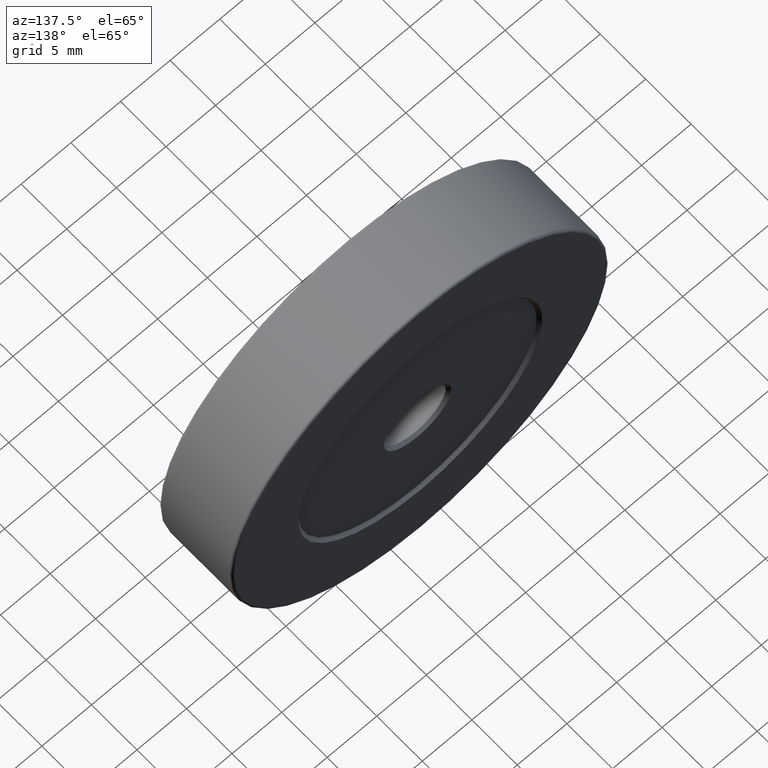
[diagram: clean part render]
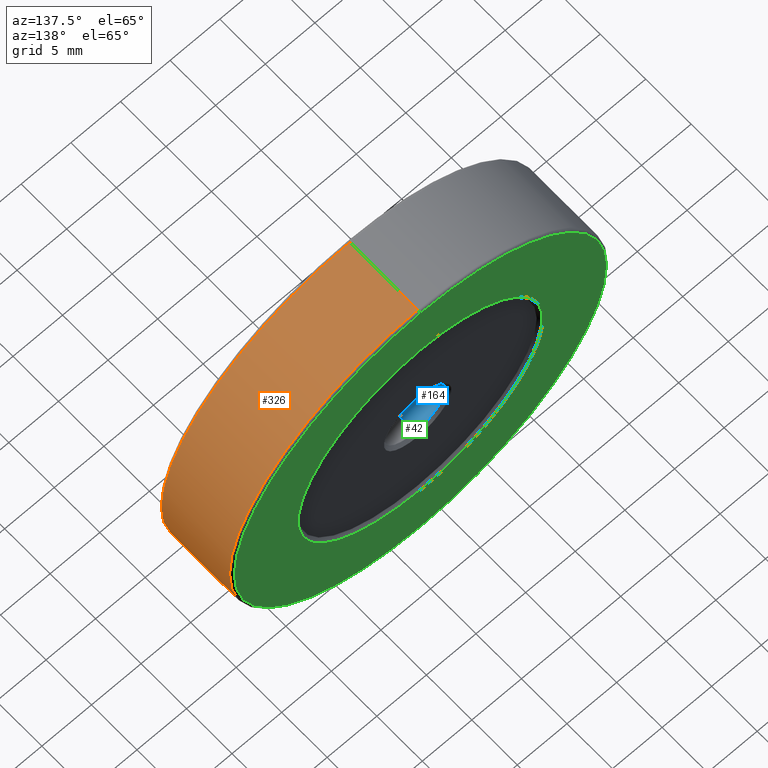
[diagram: same view with three faces highlighted in distinct colors, each labeled with its STEP entity id]
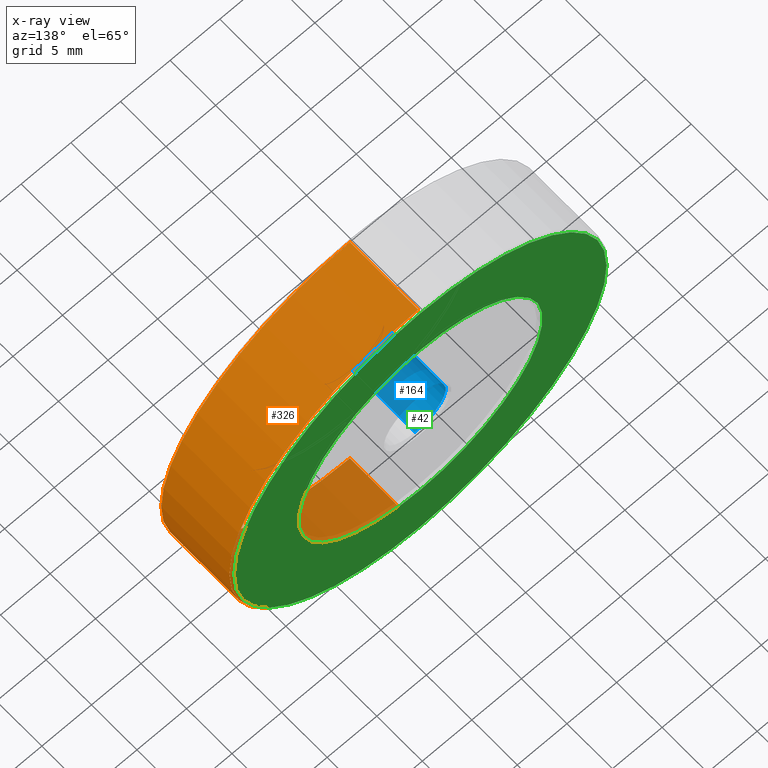
[diagram: x-ray of the same camera — body ghosted, the three highlighted faces saturated]
A machine part, auxiliary view with three faces highlighted in distinct colors.
The next image is the same camera in x-ray (body ghosted, the three faces saturated) — at least one of them is partly hidden behind the body in this view.
Their STEP definitions:

[orange] entity #326 — the highlighted cylindrical surface (partial cylindrical patch) has radius 19 mm, axis along (-0, -1, -0).
#7 = CARTESIAN_POINT ( 'NONE',  ( -7.546808913101048510, 0.8564048726972719461, 56.99999999999999289 ) ) ;
#19 = FACE_OUTER_BOUND ( 'NONE', #260, .T. ) ;
#40 = LINE ( 'NONE', #557, #454 ) ;
#43 = VERTEX_POINT ( 'NONE', #521 ) ;
#61 = DIRECTION ( 'NONE',  ( 0.000000000000000000, 0.000000000000000000, -1.000000000000000000 ) ) ;
#64 = AXIS2_PLACEMENT_3D ( 'NONE', #245, #379, #476 ) ;
#68 = VERTEX_POINT ( 'NONE', #408 ) ;
#96 = ORIENTED_EDGE ( 'NONE', *, *, #517, .F. ) ;
#118 = DIRECTION ( 'NONE',  ( -0.000000000000000000, -1.000000000000000000, -0.000000000000000000 ) ) ;
#119 = CIRCLE ( 'NONE', #372, 18.99999999999999645 ) ;
#120 = ORIENTED_EDGE ( 'NONE', *, *, #566, .T. ) ;
#149 = CYLINDRICAL_SURFACE ( 'NONE', #337, 19.00000000000000000 ) ;
#181 = VERTEX_POINT ( 'NONE', #7 ) ;
#205 = ORIENTED_EDGE ( 'NONE', *, *, #393, .T. ) ;
#222 = DIRECTION ( 'NONE',  ( -0.000000000000000000, -1.000000000000000000, -0.000000000000000000 ) ) ;
#242 = DIRECTION ( 'NONE',  ( 0.000000000000000000, 0.000000000000000000, 1.000000000000000000 ) ) ;
#244 = CARTESIAN_POINT ( 'NONE',  ( -7.546808913101048510, -6.643595127302727832, 38.00000000000000000 ) ) ;
#245 = CARTESIAN_POINT ( 'NONE',  ( -7.546808913101048510, 0.8564048726972719461, 38.00000000000000000 ) ) ;
#248 = DIRECTION ( 'NONE',  ( 0.000000000000000000, 1.000000000000000000, 0.000000000000000000 ) ) ;
#254 = LINE ( 'NONE', #443, #577 ) ;
#260 = EDGE_LOOP ( 'NONE', ( #205, #120, #442, #96 ) ) ;
#326 = ADVANCED_FACE ( 'NONE', ( #19 ), #149, .T. ) ;
#337 = AXIS2_PLACEMENT_3D ( 'NONE', #478, #339, #61 ) ;
#339 = DIRECTION ( 'NONE',  ( -0.000000000000000000, -1.000000000000000000, -0.000000000000000000 ) ) ;
#351 = CARTESIAN_POINT ( 'NONE',  ( -7.546808913101045846, -6.643595127302727832, 56.99999999999999289 ) ) ;
#372 = AXIS2_PLACEMENT_3D ( 'NONE', #244, #248, #242 ) ;
#379 = DIRECTION ( 'NONE',  ( -0.000000000000000000, -1.000000000000000000, -0.000000000000000000 ) ) ;
#393 = EDGE_CURVE ( 'NONE', #43, #181, #424, .T. ) ;
#406 = EDGE_CURVE ( 'NONE', #547, #68, #119, .T. ) ;
#408 = CARTESIAN_POINT ( 'NONE',  ( -7.546808913101048510, -6.643595127302727832, 19.00000000000000000 ) ) ;
#424 = CIRCLE ( 'NONE', #64, 18.99999999999999645 ) ;
#442 = ORIENTED_EDGE ( 'NONE', *, *, #406, .T. ) ;
#443 = CARTESIAN_POINT ( 'NONE',  ( -7.546808913101048510, 1.106404872697272168, 19.00000000000000000 ) ) ;
#454 = VECTOR ( 'NONE', #222, 1000.000000000000000 ) ;
#476 = DIRECTION ( 'NONE',  ( 0.000000000000000000, 0.000000000000000000, 1.000000000000000000 ) ) ;
#478 = CARTESIAN_POINT ( 'NONE',  ( -7.546808913101048510, 1.106404872697272168, 38.00000000000000000 ) ) ;
#517 = EDGE_CURVE ( 'NONE', #43, #68, #254, .T. ) ;
#521 = CARTESIAN_POINT ( 'NONE',  ( -7.546808913101044958, 0.8564048726972719461, 19.00000000000000000 ) ) ;
#547 = VERTEX_POINT ( 'NONE', #351 ) ;
#557 = CARTESIAN_POINT ( 'NONE',  ( -7.546808913101045846, 1.106404872697272168, 56.99999999999999289 ) ) ;
#566 = EDGE_CURVE ( 'NONE', #181, #547, #40, .T. ) ;
#577 = VECTOR ( 'NONE', #118, 1000.000000000000000 ) ;

[blue] entity #164 — the highlighted cylindrical surface (partial cylindrical patch) has radius 3.1 mm, axis along (-0, 1, -0).
#18 = ORIENTED_EDGE ( 'NONE', *, *, #304, .T. ) ;
#23 = ORIENTED_EDGE ( 'NONE', *, *, #63, .T. ) ;
#38 = ORIENTED_EDGE ( 'NONE', *, *, #108, .T. ) ;
#63 = EDGE_CURVE ( 'NONE', #511, #595, #180, .T. ) ;
#89 = CARTESIAN_POINT ( 'NONE',  ( -7.546808913101048510, -6.893595127302727832, 34.89999999999999858 ) ) ;
#93 = DIRECTION ( 'NONE',  ( 0.000000000000000000, 0.000000000000000000, 1.000000000000000000 ) ) ;
#108 = EDGE_CURVE ( 'NONE', #122, #511, #186, .T. ) ;
#109 = CARTESIAN_POINT ( 'NONE',  ( -7.546808913101048510, -6.293595127302728187, 41.09999999999999432 ) ) ;
#122 = VERTEX_POINT ( 'NONE', #561 ) ;
#130 = DIRECTION ( 'NONE',  ( -0.000000000000000000, 1.000000000000000000, -0.000000000000000000 ) ) ;
#148 = AXIS2_PLACEMENT_3D ( 'NONE', #194, #573, #344 ) ;
#162 = EDGE_LOOP ( 'NONE', ( #18, #38, #23, #514 ) ) ;
#164 = ADVANCED_FACE ( 'NONE', ( #189 ), #513, .F. ) ;
#180 = CIRCLE ( 'NONE', #496, 3.099999999999998757 ) ;
#186 = LINE ( 'NONE', #89, #537 ) ;
#189 = FACE_OUTER_BOUND ( 'NONE', #162, .T. ) ;
#194 = CARTESIAN_POINT ( 'NONE',  ( -7.546808913101048510, -6.293595127302728187, 38.00000000000000000 ) ) ;
#270 = CARTESIAN_POINT ( 'NONE',  ( -7.546808913101048510, -6.893595127302727832, 38.00000000000000000 ) ) ;
#287 = DIRECTION ( 'NONE',  ( 0.000000000000000000, 1.000000000000000000, 0.000000000000000000 ) ) ;
#304 = EDGE_CURVE ( 'NONE', #390, #122, #309, .T. ) ;
#309 = CIRCLE ( 'NONE', #148, 3.099999999999998757 ) ;
#329 = DIRECTION ( 'NONE',  ( -0.000000000000000000, 1.000000000000000000, -0.000000000000000000 ) ) ;
#344 = DIRECTION ( 'NONE',  ( 0.000000000000000000, 0.000000000000000000, -1.000000000000000000 ) ) ;
#377 = CARTESIAN_POINT ( 'NONE',  ( -7.546808913101048510, 0.5064048726972784076, 38.00000000000000000 ) ) ;
#390 = VERTEX_POINT ( 'NONE', #109 ) ;
#401 = VECTOR ( 'NONE', #560, 1000.000000000000000 ) ;
#410 = CARTESIAN_POINT ( 'NONE',  ( -7.546808913101048510, 0.5064048726972784076, 41.09999999999999432 ) ) ;
#458 = CARTESIAN_POINT ( 'NONE',  ( -7.546808913101048510, -6.893595127302727832, 41.09999999999999432 ) ) ;
#496 = AXIS2_PLACEMENT_3D ( 'NONE', #377, #287, #532 ) ;
#511 = VERTEX_POINT ( 'NONE', #597 ) ;
#513 = CYLINDRICAL_SURFACE ( 'NONE', #578, 3.099999999999998757 ) ;
#514 = ORIENTED_EDGE ( 'NONE', *, *, #551, .F. ) ;
#532 = DIRECTION ( 'NONE',  ( 0.000000000000000000, 0.000000000000000000, 1.000000000000000000 ) ) ;
#537 = VECTOR ( 'NONE', #130, 1000.000000000000000 ) ;
#551 = EDGE_CURVE ( 'NONE', #390, #595, #601, .T. ) ;
#560 = DIRECTION ( 'NONE',  ( -0.000000000000000000, 1.000000000000000000, -0.000000000000000000 ) ) ;
#561 = CARTESIAN_POINT ( 'NONE',  ( -7.546808913101048510, -6.293595127302728187, 34.89999999999999858 ) ) ;
#573 = DIRECTION ( 'NONE',  ( -0.000000000000000000, -1.000000000000000000, -0.000000000000000000 ) ) ;
#578 = AXIS2_PLACEMENT_3D ( 'NONE', #270, #329, #93 ) ;
#595 = VERTEX_POINT ( 'NONE', #410 ) ;
#597 = CARTESIAN_POINT ( 'NONE',  ( -7.546808913101048510, 0.5064048726972784076, 34.89999999999999858 ) ) ;
#601 = LINE ( 'NONE', #458, #401 ) ;

[green] entity #42 — the highlighted planar face has unit normal (0, 1, 0).
#10 = DIRECTION ( 'NONE',  ( 0.000000000000000000, 1.000000000000000000, 0.000000000000000000 ) ) ;
#21 = VERTEX_POINT ( 'NONE', #143 ) ;
#30 = CARTESIAN_POINT ( 'NONE',  ( -7.546808913101048510, 1.106404872697272168, 38.00000000000000000 ) ) ;
#32 = DIRECTION ( 'NONE',  ( -0.000000000000000000, -1.000000000000000000, -0.000000000000000000 ) ) ;
#42 = ADVANCED_FACE ( 'NONE', ( #283, #206 ), #472, .T. ) ;
#55 = CARTESIAN_POINT ( 'NONE',  ( -7.546808913101048510, 1.106404872697272168, 38.00000000000000000 ) ) ;
#56 = EDGE_CURVE ( 'NONE', #407, #77, #506, .T. ) ;
#57 = CIRCLE ( 'NONE', #524, 12.29999999999999893 ) ;
#77 = VERTEX_POINT ( 'NONE', #286 ) ;
#127 = AXIS2_PLACEMENT_3D ( 'NONE', #30, #251, #215 ) ;
#143 = CARTESIAN_POINT ( 'NONE',  ( -7.546808913101048510, 1.106404872697272168, 50.29999999999999716 ) ) ;
#152 = DIRECTION ( 'NONE',  ( 0.000000000000000000, 1.000000000000000000, 0.000000000000000000 ) ) ;
#160 = DIRECTION ( 'NONE',  ( -0.000000000000000000, -1.000000000000000000, -0.000000000000000000 ) ) ;
#192 = DIRECTION ( 'NONE',  ( 0.000000000000000000, -0.000000000000000000, 1.000000000000000000 ) ) ;
#201 = EDGE_LOOP ( 'NONE', ( #317, #409 ) ) ;
#206 = FACE_BOUND ( 'NONE', #201, .T. ) ;
#209 = CARTESIAN_POINT ( 'NONE',  ( -7.546808913101048510, 1.106404872697272168, 38.00000000000000000 ) ) ;
#215 = DIRECTION ( 'NONE',  ( 0.000000000000000000, 0.000000000000000000, 1.000000000000000000 ) ) ;
#220 = ORIENTED_EDGE ( 'NONE', *, *, #56, .T. ) ;
#235 = DIRECTION ( 'NONE',  ( 0.000000000000000000, 0.000000000000000000, 1.000000000000000000 ) ) ;
#238 = AXIS2_PLACEMENT_3D ( 'NONE', #353, #32, #550 ) ;
#251 = DIRECTION ( 'NONE',  ( 0.000000000000000000, 1.000000000000000000, 0.000000000000000000 ) ) ;
#283 = FACE_OUTER_BOUND ( 'NONE', #387, .T. ) ;
#286 = CARTESIAN_POINT ( 'NONE',  ( -7.546808913101048510, 1.106404872697272168, 56.74999999999999289 ) ) ;
#317 = ORIENTED_EDGE ( 'NONE', *, *, #487, .T. ) ;
#328 = CARTESIAN_POINT ( 'NONE',  ( -7.546808913101046734, 1.106404872697272168, 25.69999999999999574 ) ) ;
#352 = AXIS2_PLACEMENT_3D ( 'NONE', #436, #10, #192 ) ;
#353 = CARTESIAN_POINT ( 'NONE',  ( -7.546808913101048510, 1.106404872697272168, 38.00000000000000000 ) ) ;
#354 = ORIENTED_EDGE ( 'NONE', *, *, #431, .T. ) ;
#387 = EDGE_LOOP ( 'NONE', ( #354, #220 ) ) ;
#400 = DIRECTION ( 'NONE',  ( 0.000000000000000000, 0.000000000000000000, 1.000000000000000000 ) ) ;
#407 = VERTEX_POINT ( 'NONE', #437 ) ;
#409 = ORIENTED_EDGE ( 'NONE', *, *, #429, .T. ) ;
#429 = EDGE_CURVE ( 'NONE', #559, #21, #482, .T. ) ;
#431 = EDGE_CURVE ( 'NONE', #77, #407, #494, .T. ) ;
#436 = CARTESIAN_POINT ( 'NONE',  ( -7.546808913101048510, 1.106404872697272168, 38.00000000000000000 ) ) ;
#437 = CARTESIAN_POINT ( 'NONE',  ( -7.546808913101045846, 1.106404872697272168, 19.25000000000000000 ) ) ;
#472 = PLANE ( 'NONE',  #352 ) ;
#482 = CIRCLE ( 'NONE', #238, 12.29999999999999893 ) ;
#487 = EDGE_CURVE ( 'NONE', #21, #559, #57, .T. ) ;
#494 = CIRCLE ( 'NONE', #127, 18.74999999999999645 ) ;
#506 = CIRCLE ( 'NONE', #609, 18.74999999999999645 ) ;
#524 = AXIS2_PLACEMENT_3D ( 'NONE', #209, #160, #400 ) ;
#550 = DIRECTION ( 'NONE',  ( 0.000000000000000000, 0.000000000000000000, 1.000000000000000000 ) ) ;
#559 = VERTEX_POINT ( 'NONE', #328 ) ;
#609 = AXIS2_PLACEMENT_3D ( 'NONE', #55, #152, #235 ) ;